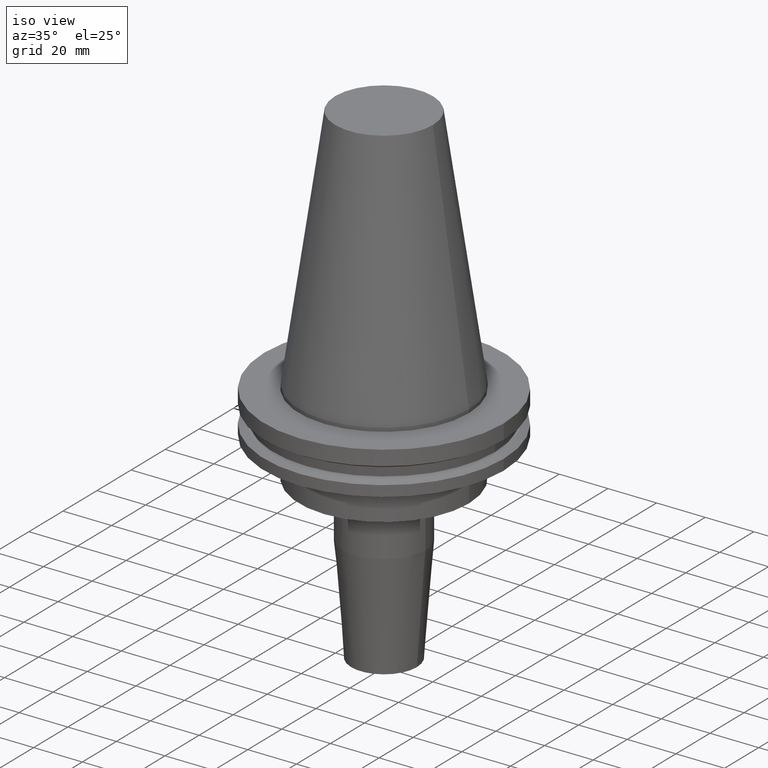
[diagram: clean part render]
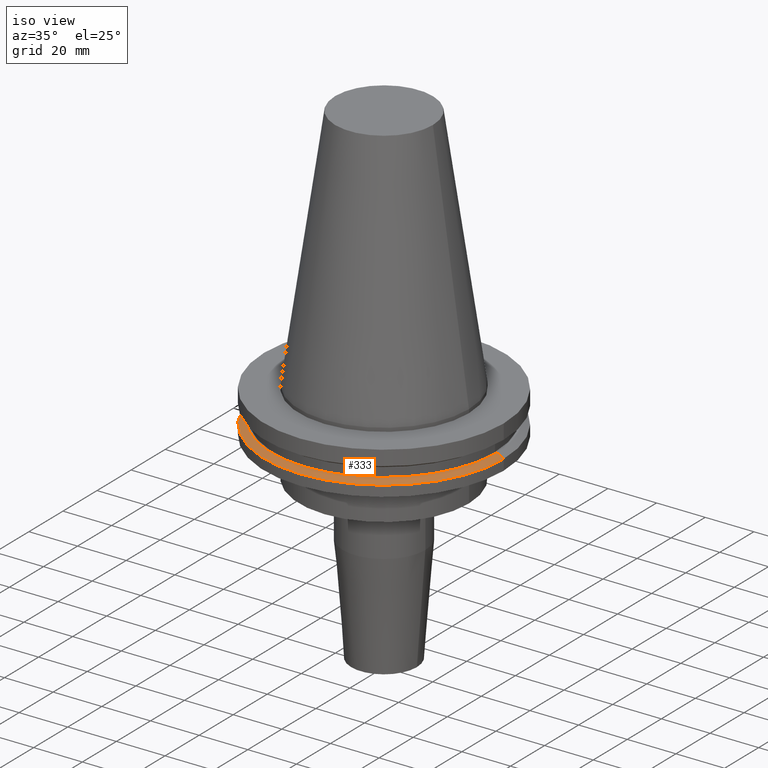
[diagram: same view with one face highlighted and labeled with its STEP entity id]
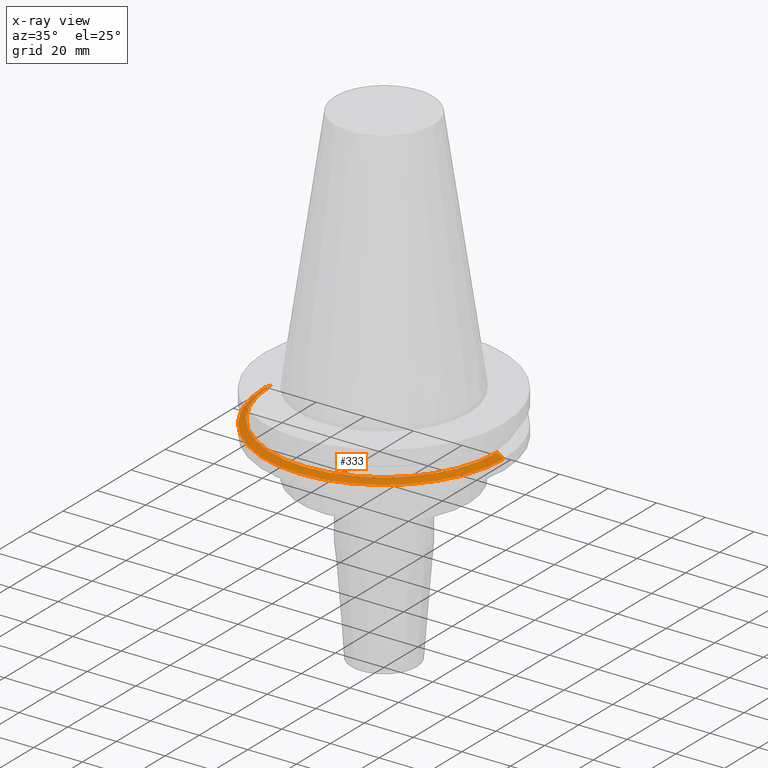
[diagram: x-ray of the same camera — body ghosted, the highlighted face saturated]
A machine part, iso view. The second image highlights one B-rep face of the part: STEP entity #333.
The next image is the same camera in x-ray: the body ghosted, the highlighted face saturated — about 4% of this face is hidden behind the body in this view.
In plain terms, the highlighted conical surface has half-angle 60 deg.
Its self-contained STEP definition (entity closure, byte-faithful):
#22 = DIRECTION ( 'NONE',  ( -0.000000000000000000, -0.000000000000000000, 1.000000000000000000 ) ) ;
#52 = AXIS2_PLACEMENT_3D ( 'NONE', #249, #387, #765 ) ;
#56 = VERTEX_POINT ( 'NONE', #527 ) ;
#95 = ORIENTED_EDGE ( 'NONE', *, *, #235, .T. ) ;
#106 = CARTESIAN_POINT ( 'NONE',  ( 0.000000000000000000, 0.000000000000000000, -14.65761014474876944 ) ) ;
#110 = DIRECTION ( 'NONE',  ( -0.000000000000000000, -0.000000000000000000, 1.000000000000000000 ) ) ;
#154 = CIRCLE ( 'NONE', #672, 46.43919780457007818 ) ;
#203 = AXIS2_PLACEMENT_3D ( 'NONE', #106, #110, #375 ) ;
#228 = CARTESIAN_POINT ( 'NONE',  ( 0.000000000000000000, 0.000000000000000000, -13.05499999999999794 ) ) ;
#235 = EDGE_CURVE ( 'NONE', #56, #786, #520, .T. ) ;
#249 = CARTESIAN_POINT ( 'NONE',  ( 0.000000000000000000, 0.000000000000000000, -14.65761014474876944 ) ) ;
#282 = EDGE_CURVE ( 'NONE', #786, #362, #783, .T. ) ;
#310 = CARTESIAN_POINT ( 'NONE',  ( -49.21499999999998920, 6.027099222003697037E-15, -14.65761014474876944 ) ) ;
#318 = EDGE_CURVE ( 'NONE', #455, #362, #565, .T. ) ;
#333 = ADVANCED_FACE ( 'NONE', ( #838 ), #813, .T. ) ;
#334 = ORIENTED_EDGE ( 'NONE', *, *, #282, .T. ) ;
#362 = VERTEX_POINT ( 'NONE', #450 ) ;
#375 = DIRECTION ( 'NONE',  ( 1.000000000000000000, 0.000000000000000000, 0.000000000000000000 ) ) ;
#387 = DIRECTION ( 'NONE',  ( 0.000000000000000000, 0.000000000000000000, -1.000000000000000000 ) ) ;
#437 = DIRECTION ( 'NONE',  ( -0.8660254037844169472, 0.000000000000000000, -0.5000000000000375255 ) ) ;
#445 = DIRECTION ( 'NONE',  ( 0.8660254037844169472, 1.060575238724880168E-16, -0.5000000000000375255 ) ) ;
#450 = CARTESIAN_POINT ( 'NONE',  ( 49.21499999999998920, 0.000000000000000000, -14.65761014474876944 ) ) ;
#455 = VERTEX_POINT ( 'NONE', #726 ) ;
#483 = ORIENTED_EDGE ( 'NONE', *, *, #318, .F. ) ;
#520 = LINE ( 'NONE', #830, #725 ) ;
#527 = CARTESIAN_POINT ( 'NONE',  ( -46.43919780457007818, 0.000000000000000000, -13.05499999999999794 ) ) ;
#565 = LINE ( 'NONE', #579, #615 ) ;
#579 = CARTESIAN_POINT ( 'NONE',  ( 49.21499999999998920, 6.027099222003697037E-15, -14.65761014474876944 ) ) ;
#604 = EDGE_CURVE ( 'NONE', #56, #455, #154, .T. ) ;
#615 = VECTOR ( 'NONE', #445, 1000.000000000000114 ) ;
#655 = EDGE_LOOP ( 'NONE', ( #483, #778, #95, #334 ) ) ;
#672 = AXIS2_PLACEMENT_3D ( 'NONE', #228, #22, #678 ) ;
#678 = DIRECTION ( 'NONE',  ( 1.000000000000000000, 0.000000000000000000, 0.000000000000000000 ) ) ;
#725 = VECTOR ( 'NONE', #437, 1000.000000000000114 ) ;
#726 = CARTESIAN_POINT ( 'NONE',  ( 46.43919780457007818, 5.857130358318725715E-15, -13.05499999999999794 ) ) ;
#765 = DIRECTION ( 'NONE',  ( -1.000000000000000000, 0.000000000000000000, 0.000000000000000000 ) ) ;
#778 = ORIENTED_EDGE ( 'NONE', *, *, #604, .F. ) ;
#783 = CIRCLE ( 'NONE', #203, 49.21499999999998920 ) ;
#786 = VERTEX_POINT ( 'NONE', #310 ) ;
#813 = CONICAL_SURFACE ( 'NONE', #52, 49.21499999999998920, 1.047197551196554333 ) ;
#830 = CARTESIAN_POINT ( 'NONE',  ( -49.21499999999998920, 0.000000000000000000, -14.65761014474876944 ) ) ;
#838 = FACE_OUTER_BOUND ( 'NONE', #655, .T. ) ;